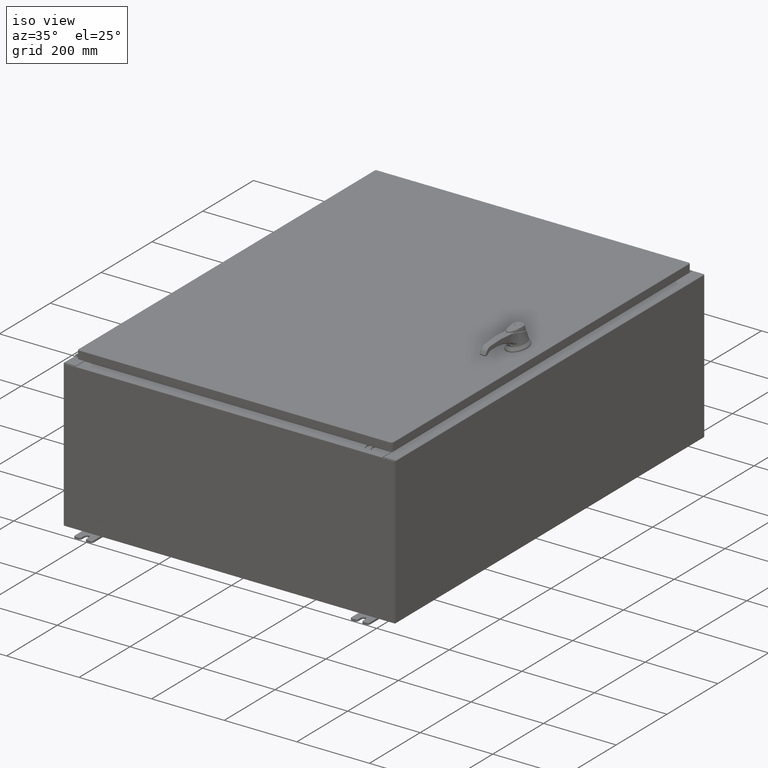
[diagram: clean part render]
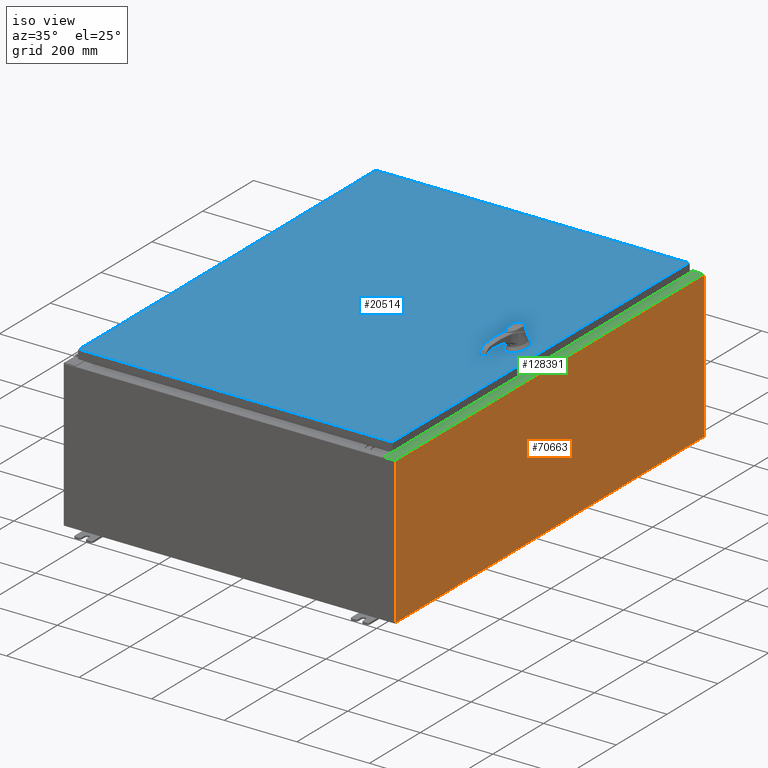
[diagram: same view with three faces highlighted in distinct colors, each labeled with its STEP entity id]
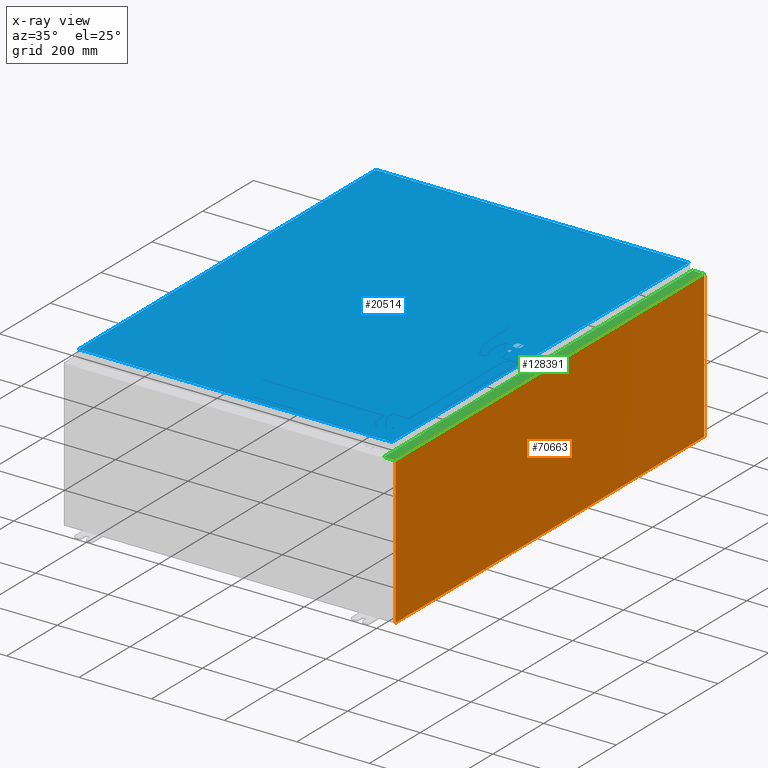
[diagram: x-ray of the same camera — body ghosted, the three highlighted faces saturated]
A machine part, iso view with three faces highlighted in distinct colors.
The next image is the same camera in x-ray (body ghosted, the three faces saturated) — at least one of them is partly hidden behind the body in this view.
Their STEP definitions:

[orange] entity #70663 — the highlighted planar face has unit normal (-1, 0, 0).
#13426 = ORIENTED_EDGE ( 'NONE', *, *, #73086, .T. ) ;
#14192 = LINE ( 'NONE', #91374, #117995 ) ;
#16916 = CARTESIAN_POINT ( 'NONE',  ( 17.99999999999999600, -23.92529999999998900, -6.201571169367080700E-014 ) ) ;
#20278 = EDGE_CURVE ( 'NONE', #101464, #87814, #14192, .T. ) ;
#28510 = CARTESIAN_POINT ( 'NONE',  ( 18.00000000000005000, -23.92529999999998900, 15.83760000000000200 ) ) ;
#37162 = EDGE_CURVE ( 'NONE', #52824, #109410, #124365, .T. ) ;
#52776 = CARTESIAN_POINT ( 'NONE',  ( 17.99999999999999600, 0.0000000000000000000, -6.201571169367080700E-014 ) ) ;
#52824 = VERTEX_POINT ( 'NONE', #87596 ) ;
#55037 = ORIENTED_EDGE ( 'NONE', *, *, #20278, .F. ) ;
#63211 = DIRECTION ( 'NONE',  ( 3.430827668758846700E-015, 0.0000000000000000000, 1.000000000000000000 ) ) ;
#65904 = VECTOR ( 'NONE', #92284, 39.37007874015748100 ) ;
#66698 = CARTESIAN_POINT ( 'NONE',  ( 17.99999999999999600, -23.92529999999998900, 0.01299999999999898300 ) ) ;
#69177 = VECTOR ( 'NONE', #102831, 39.37007874015748100 ) ;
#70663 = ADVANCED_FACE ( 'NONE', ( #86951 ), #104457, .F. ) ;
#71543 = CARTESIAN_POINT ( 'NONE',  ( 18.00000000000005000, 23.92529999999998900, 15.83760000000001400 ) ) ;
#71860 = CARTESIAN_POINT ( 'NONE',  ( 17.99999999999999600, 23.92529999999998900, -6.201571169367080700E-014 ) ) ;
#73086 = EDGE_CURVE ( 'NONE', #109410, #87814, #130807, .T. ) ;
#74635 = CARTESIAN_POINT ( 'NONE',  ( 17.99999999999999600, 23.92529999999998600, 0.01300000000000203200 ) ) ;
#75626 = VECTOR ( 'NONE', #89504, 39.37007874015748100 ) ;
#86951 = FACE_OUTER_BOUND ( 'NONE', #132539, .T. ) ;
#87596 = CARTESIAN_POINT ( 'NONE',  ( 18.00000000000005000, 23.92529999999998600, 15.83760000000001400 ) ) ;
#87814 = VERTEX_POINT ( 'NONE', #66698 ) ;
#89504 = DIRECTION ( 'NONE',  ( -3.430827668758847500E-015, 0.0000000000000000000, -1.000000000000000000 ) ) ;
#90268 = LINE ( 'NONE', #71860, #65904 ) ;
#91374 = CARTESIAN_POINT ( 'NONE',  ( 17.99999999999999600, -23.92529999999998900, 0.01299999999999984700 ) ) ;
#92284 = DIRECTION ( 'NONE',  ( 3.430827668758847500E-015, 0.0000000000000000000, 1.000000000000000000 ) ) ;
#94868 = ORIENTED_EDGE ( 'NONE', *, *, #118464, .T. ) ;
#98687 = ORIENTED_EDGE ( 'NONE', *, *, #37162, .T. ) ;
#100977 = AXIS2_PLACEMENT_3D ( 'NONE', #52776, #125319, #63211 ) ;
#101464 = VERTEX_POINT ( 'NONE', #74635 ) ;
#102831 = DIRECTION ( 'NONE',  ( -0.0000000000000000000, -1.000000000000000000, -0.0000000000000000000 ) ) ;
#104457 = PLANE ( 'NONE',  #100977 ) ;
#109410 = VERTEX_POINT ( 'NONE', #28510 ) ;
#112195 = DIRECTION ( 'NONE',  ( -1.566960444969418600E-031, -1.000000000000000000, -4.567295697298285000E-017 ) ) ;
#117995 = VECTOR ( 'NONE', #112195, 39.37007874015748100 ) ;
#118464 = EDGE_CURVE ( 'NONE', #101464, #52824, #90268, .T. ) ;
#124365 = LINE ( 'NONE', #71543, #69177 ) ;
#125319 = DIRECTION ( 'NONE',  ( -1.000000000000000000, 0.0000000000000000000, 3.430827668758846700E-015 ) ) ;
#130807 = LINE ( 'NONE', #16916, #75626 ) ;
#132539 = EDGE_LOOP ( 'NONE', ( #98687, #13426, #55037, #94868 ) ) ;

[blue] entity #20514 — the highlighted planar face has unit normal (0, 0, -1).
#185 = EDGE_LOOP ( 'NONE', ( #32692, #109024, #74725, #83992, #91332, #103546, #100990, #42180 ) ) ;
#461 = VECTOR ( 'NONE', #74531, 39.37007874015748100 ) ;
#3448 = AXIS2_PLACEMENT_3D ( 'NONE', #36882, #109441, #47304 ) ;
#3476 = DIRECTION ( 'NONE',  ( -0.0000000000000000000, 0.0000000000000000000, 1.000000000000000000 ) ) ;
#4538 = CARTESIAN_POINT ( 'NONE',  ( -16.99029999999999800, -23.00630000000000300, 1.946441695485787500E-015 ) ) ;
#5966 = CARTESIAN_POINT ( 'NONE',  ( -16.99029999999998400, 23.00630000000001000, -1.297627796990525000E-015 ) ) ;
#6621 = VECTOR ( 'NONE', #40132, 39.37007874015748100 ) ;
#7562 = LINE ( 'NONE', #4538, #59459 ) ;
#8070 = CARTESIAN_POINT ( 'NONE',  ( 16.99029999999999800, 23.00630000000001000, 1.946441695485787500E-015 ) ) ;
#9580 = CARTESIAN_POINT ( 'NONE',  ( 14.77822737075630900, 0.4029999999999252000, 0.0000000000000000000 ) ) ;
#11800 = CARTESIAN_POINT ( 'NONE',  ( 14.40649999999999800, -1.338000000000000100, 0.0000000000000000000 ) ) ;
#11897 = AXIS2_PLACEMENT_3D ( 'NONE', #101452, #39332, #111889 ) ;
#15322 = VERTEX_POINT ( 'NONE', #114502 ) ;
#20083 = EDGE_CURVE ( 'NONE', #45041, #64382, #103428, .T. ) ;
#20514 = ADVANCED_FACE ( 'NONE', ( #104977, #80642, #25463 ), #32342, .F. ) ;
#21223 = EDGE_CURVE ( 'NONE', #45819, #127299, #7562, .T. ) ;
#21680 = AXIS2_PLACEMENT_3D ( 'NONE', #22404, #94964, #32801 ) ;
#22302 = CIRCLE ( 'NONE', #30408, 0.4499999999999168000 ) ;
#22404 = CARTESIAN_POINT ( 'NONE',  ( 0.0000000000000000000, 0.0000000000000000000, 0.0000000000000000000 ) ) ;
#25169 = CARTESIAN_POINT ( 'NONE',  ( 14.37777262924369000, -0.4029999999999252000, 0.0000000000000000000 ) ) ;
#25463 = FACE_BOUND ( 'NONE', #185, .T. ) ;
#25514 = VECTOR ( 'NONE', #132279, 39.37007874015748100 ) ;
#26528 = EDGE_CURVE ( 'NONE', #103973, #96604, #28003, .T. ) ;
#28003 = LINE ( 'NONE', #84965, #461 ) ;
#28245 = VERTEX_POINT ( 'NONE', #11800 ) ;
#29455 = LINE ( 'NONE', #5966, #78142 ) ;
#30157 = LINE ( 'NONE', #62503, #109685 ) ;
#30408 = AXIS2_PLACEMENT_3D ( 'NONE', #95776, #33616, #106180 ) ;
#32342 = PLANE ( 'NONE',  #21680 ) ;
#32375 = ORIENTED_EDGE ( 'NONE', *, *, #65922, .F. ) ;
#32409 = VERTEX_POINT ( 'NONE', #90830 ) ;
#32692 = ORIENTED_EDGE ( 'NONE', *, *, #114105, .T. ) ;
#32801 = DIRECTION ( 'NONE',  ( -1.000000000000000000, 0.0000000000000000000, -0.0000000000000000000 ) ) ;
#33310 = VERTEX_POINT ( 'NONE', #90485 ) ;
#33616 = DIRECTION ( 'NONE',  ( -0.0000000000000000000, 0.0000000000000000000, 1.000000000000000000 ) ) ;
#35748 = DIRECTION ( 'NONE',  ( 1.000000000000000000, -0.0000000000000000000, -0.0000000000000000000 ) ) ;
#36882 = CARTESIAN_POINT ( 'NONE',  ( 14.57799999999999900, 0.0000000000000000000, 0.0000000000000000000 ) ) ;
#36918 = DIRECTION ( 'NONE',  ( -0.0000000000000000000, 0.0000000000000000000, 1.000000000000000000 ) ) ;
#36995 = ORIENTED_EDGE ( 'NONE', *, *, #104203, .T. ) ;
#38498 = VERTEX_POINT ( 'NONE', #122379 ) ;
#39332 = DIRECTION ( 'NONE',  ( -0.0000000000000000000, 0.0000000000000000000, 1.000000000000000000 ) ) ;
#40105 = EDGE_LOOP ( 'NONE', ( #105747, #36995, #42510, #45114 ) ) ;
#40132 = DIRECTION ( 'NONE',  ( 0.0000000000000000000, -1.000000000000000000, 0.0000000000000000000 ) ) ;
#40399 = EDGE_CURVE ( 'NONE', #107864, #54961, #132619, .T. ) ;
#41616 = AXIS2_PLACEMENT_3D ( 'NONE', #48266, #120803, #58680 ) ;
#42180 = ORIENTED_EDGE ( 'NONE', *, *, #20083, .F. ) ;
#42510 = ORIENTED_EDGE ( 'NONE', *, *, #40399, .T. ) ;
#43776 = LINE ( 'NONE', #90489, #95712 ) ;
#45041 = VERTEX_POINT ( 'NONE', #74267 ) ;
#45114 = ORIENTED_EDGE ( 'NONE', *, *, #130340, .T. ) ;
#45819 = VERTEX_POINT ( 'NONE', #63737 ) ;
#47304 = DIRECTION ( 'NONE',  ( 1.000000000000000000, 0.0000000000000000000, 0.0000000000000000000 ) ) ;
#48266 = CARTESIAN_POINT ( 'NONE',  ( 14.57799999999999900, 0.0000000000000000000, 0.0000000000000000000 ) ) ;
#48580 = EDGE_CURVE ( 'NONE', #33310, #15322, #82846, .T. ) ;
#48975 = EDGE_CURVE ( 'NONE', #28245, #38498, #60056, .T. ) ;
#49059 = EDGE_CURVE ( 'NONE', #64382, #32409, #77886, .T. ) ;
#52997 = CIRCLE ( 'NONE', #41616, 0.4499999999999168000 ) ;
#54961 = VERTEX_POINT ( 'NONE', #126437 ) ;
#58680 = DIRECTION ( 'NONE',  ( 1.000000000000000000, 0.0000000000000000000, 0.0000000000000000000 ) ) ;
#59459 = VECTOR ( 'NONE', #35748, 39.37007874015748100 ) ;
#60056 = CIRCLE ( 'NONE', #104587, 0.1715000000000011500 ) ;
#62503 = CARTESIAN_POINT ( 'NONE',  ( 14.98099999999992700, 8.175868191945441800E-014, 0.0000000000000000000 ) ) ;
#63737 = CARTESIAN_POINT ( 'NONE',  ( -16.99029999999999800, -23.00630000000000300, 1.946441695485787500E-015 ) ) ;
#63846 = AXIS2_PLACEMENT_3D ( 'NONE', #65526, #3476, #75973 ) ;
#64382 = VERTEX_POINT ( 'NONE', #9580 ) ;
#65526 = CARTESIAN_POINT ( 'NONE',  ( 14.57799999999999900, 0.0000000000000000000, 0.0000000000000000000 ) ) ;
#65922 = EDGE_CURVE ( 'NONE', #38498, #28245, #128292, .T. ) ;
#69394 = EDGE_CURVE ( 'NONE', #96604, #72893, #22302, .T. ) ;
#72404 = EDGE_LOOP ( 'NONE', ( #32375, #98151 ) ) ;
#72893 = VERTEX_POINT ( 'NONE', #118495 ) ;
#72937 = DIRECTION ( 'NONE',  ( 5.457491617345625800E-015, -1.000000000000000000, 0.0000000000000000000 ) ) ;
#74267 = CARTESIAN_POINT ( 'NONE',  ( 14.98099999999992700, 0.2002273707563075900, 0.0000000000000000000 ) ) ;
#74378 = CIRCLE ( 'NONE', #63846, 0.4499999999999168000 ) ;
#74531 = DIRECTION ( 'NONE',  ( 1.000000000000000000, 0.0000000000000000000, 0.0000000000000000000 ) ) ;
#74725 = ORIENTED_EDGE ( 'NONE', *, *, #26528, .F. ) ;
#75973 = DIRECTION ( 'NONE',  ( 1.000000000000000000, 0.0000000000000000000, 0.0000000000000000000 ) ) ;
#77886 = LINE ( 'NONE', #89984, #102197 ) ;
#78142 = VECTOR ( 'NONE', #130138, 39.37007874015748100 ) ;
#80642 = FACE_OUTER_BOUND ( 'NONE', #40105, .T. ) ;
#82846 = LINE ( 'NONE', #132653, #6621 ) ;
#83992 = ORIENTED_EDGE ( 'NONE', *, *, #93294, .F. ) ;
#84965 = CARTESIAN_POINT ( 'NONE',  ( 0.0000000000000000000, -0.4029999999999252000, 0.0000000000000000000 ) ) ;
#85877 = CARTESIAN_POINT ( 'NONE',  ( 16.99029999999999800, -23.00630000000000300, -2.048885995248197400E-016 ) ) ;
#89984 = CARTESIAN_POINT ( 'NONE',  ( 0.0000000000000000000, 0.4029999999999252000, 0.0000000000000000000 ) ) ;
#90485 = CARTESIAN_POINT ( 'NONE',  ( 14.17500000000007400, 0.2002273707563079800, 0.0000000000000000000 ) ) ;
#90489 = CARTESIAN_POINT ( 'NONE',  ( 16.99029999999999800, -23.00630000000000300, -2.048885995248197400E-016 ) ) ;
#90830 = CARTESIAN_POINT ( 'NONE',  ( 14.37777262924369000, 0.4029999999999252000, 0.0000000000000000000 ) ) ;
#91332 = ORIENTED_EDGE ( 'NONE', *, *, #48580, .F. ) ;
#93294 = EDGE_CURVE ( 'NONE', #15322, #103973, #52997, .T. ) ;
#94964 = DIRECTION ( 'NONE',  ( 0.0000000000000000000, 0.0000000000000000000, -1.000000000000000000 ) ) ;
#95712 = VECTOR ( 'NONE', #121721, 39.37007874015748100 ) ;
#95776 = CARTESIAN_POINT ( 'NONE',  ( 14.57799999999999900, 0.0000000000000000000, 0.0000000000000000000 ) ) ;
#96604 = VERTEX_POINT ( 'NONE', #97288 ) ;
#97288 = CARTESIAN_POINT ( 'NONE',  ( 14.77822737075630900, -0.4029999999999252000, 0.0000000000000000000 ) ) ;
#98151 = ORIENTED_EDGE ( 'NONE', *, *, #48975, .F. ) ;
#99043 = CARTESIAN_POINT ( 'NONE',  ( 14.57799999999999900, -1.338000000000000100, 0.0000000000000000000 ) ) ;
#100990 = ORIENTED_EDGE ( 'NONE', *, *, #49059, .F. ) ;
#101351 = CARTESIAN_POINT ( 'NONE',  ( 16.99029999999999800, 23.00630000000001000, 1.946441695485787500E-015 ) ) ;
#101452 = CARTESIAN_POINT ( 'NONE',  ( 14.57799999999999900, -1.338000000000000100, 0.0000000000000000000 ) ) ;
#102197 = VECTOR ( 'NONE', #110798, 39.37007874015748100 ) ;
#103428 = CIRCLE ( 'NONE', #3448, 0.4499999999999168000 ) ;
#103546 = ORIENTED_EDGE ( 'NONE', *, *, #133400, .F. ) ;
#103973 = VERTEX_POINT ( 'NONE', #25169 ) ;
#104203 = EDGE_CURVE ( 'NONE', #127299, #107864, #43776, .T. ) ;
#104587 = AXIS2_PLACEMENT_3D ( 'NONE', #99043, #36918, #109476 ) ;
#104977 = FACE_BOUND ( 'NONE', #72404, .T. ) ;
#105747 = ORIENTED_EDGE ( 'NONE', *, *, #21223, .T. ) ;
#106180 = DIRECTION ( 'NONE',  ( 1.000000000000000000, 0.0000000000000000000, 0.0000000000000000000 ) ) ;
#107864 = VERTEX_POINT ( 'NONE', #101351 ) ;
#109024 = ORIENTED_EDGE ( 'NONE', *, *, #69394, .F. ) ;
#109441 = DIRECTION ( 'NONE',  ( -0.0000000000000000000, 0.0000000000000000000, 1.000000000000000000 ) ) ;
#109476 = DIRECTION ( 'NONE',  ( 1.000000000000000000, 0.0000000000000000000, 0.0000000000000000000 ) ) ;
#109685 = VECTOR ( 'NONE', #72937, 39.37007874015748100 ) ;
#110798 = DIRECTION ( 'NONE',  ( -1.000000000000000000, 0.0000000000000000000, 0.0000000000000000000 ) ) ;
#111889 = DIRECTION ( 'NONE',  ( 1.000000000000000000, 0.0000000000000000000, 0.0000000000000000000 ) ) ;
#114105 = EDGE_CURVE ( 'NONE', #45041, #72893, #30157, .T. ) ;
#114502 = CARTESIAN_POINT ( 'NONE',  ( 14.17500000000007400, -0.2002273707563079800, 0.0000000000000000000 ) ) ;
#118495 = CARTESIAN_POINT ( 'NONE',  ( 14.98099999999992900, -0.2002273707563079800, 0.0000000000000000000 ) ) ;
#120803 = DIRECTION ( 'NONE',  ( -0.0000000000000000000, 0.0000000000000000000, 1.000000000000000000 ) ) ;
#121721 = DIRECTION ( 'NONE',  ( 0.0000000000000000000, 1.000000000000000000, 0.0000000000000000000 ) ) ;
#122379 = CARTESIAN_POINT ( 'NONE',  ( 14.74950000000000100, -1.338000000000000100, 0.0000000000000000000 ) ) ;
#126437 = CARTESIAN_POINT ( 'NONE',  ( -16.99029999999998400, 23.00630000000001000, -1.297627796990525000E-015 ) ) ;
#127299 = VERTEX_POINT ( 'NONE', #85877 ) ;
#128292 = CIRCLE ( 'NONE', #11897, 0.1715000000000011500 ) ;
#130138 = DIRECTION ( 'NONE',  ( 0.0000000000000000000, -1.000000000000000000, 0.0000000000000000000 ) ) ;
#130340 = EDGE_CURVE ( 'NONE', #54961, #45819, #29455, .T. ) ;
#132279 = DIRECTION ( 'NONE',  ( -1.000000000000000000, -0.0000000000000000000, -0.0000000000000000000 ) ) ;
#132619 = LINE ( 'NONE', #8070, #25514 ) ;
#132653 = CARTESIAN_POINT ( 'NONE',  ( 14.17500000000007400, 0.0000000000000000000, 0.0000000000000000000 ) ) ;
#133400 = EDGE_CURVE ( 'NONE', #32409, #33310, #74378, .T. ) ;

[green] entity #128391 — the highlighted planar face has unit normal (-0, 0, -1).
#539 = AXIS2_PLACEMENT_3D ( 'NONE', #80264, #18141, #90740 ) ;
#2121 = CARTESIAN_POINT ( 'NONE',  ( 16.75005000000005100, -22.63109999999998600, 15.92530000000000500 ) ) ;
#2444 = CARTESIAN_POINT ( 'NONE',  ( 16.71270000000005100, -22.59374999999998900, 15.92530000000000900 ) ) ;
#2486 = VECTOR ( 'NONE', #121038, 39.37007874015748100 ) ;
#2526 = VERTEX_POINT ( 'NONE', #41567 ) ;
#3644 = ORIENTED_EDGE ( 'NONE', *, *, #51392, .T. ) ;
#3708 = CARTESIAN_POINT ( 'NONE',  ( 16.75005000000005100, -22.59374999999998900, 15.92530000000000900 ) ) ;
#5333 = EDGE_CURVE ( 'NONE', #2526, #6941, #20005, .T. ) ;
#6517 = DIRECTION ( 'NONE',  ( 1.000000000000000000, 8.144358738339254500E-032, -7.132762385546384700E-015 ) ) ;
#6941 = VERTEX_POINT ( 'NONE', #122353 ) ;
#9995 = VERTEX_POINT ( 'NONE', #87378 ) ;
#11057 = CARTESIAN_POINT ( 'NONE',  ( 16.75005000000005100, 22.63109999999996800, 15.92530000000000500 ) ) ;
#13483 = LINE ( 'NONE', #68306, #92986 ) ;
#15616 = CARTESIAN_POINT ( 'NONE',  ( 17.91230000000005200, -23.92529999999998900, 15.92530000000000000 ) ) ;
#16174 = ORIENTED_EDGE ( 'NONE', *, *, #5333, .T. ) ;
#17116 = VERTEX_POINT ( 'NONE', #79234 ) ;
#18141 = DIRECTION ( 'NONE',  ( 7.132762385546384700E-015, 0.0000000000000000000, 1.000000000000000000 ) ) ;
#20005 = LINE ( 'NONE', #46866, #127055 ) ;
#20774 = CARTESIAN_POINT ( 'NONE',  ( 1.138521944745543500E-013, 0.0000000000000000000, 15.92530000000012600 ) ) ;
#24411 = VERTEX_POINT ( 'NONE', #133139 ) ;
#25987 = DIRECTION ( 'NONE',  ( 7.132762385546384700E-015, 0.0000000000000000000, 1.000000000000000000 ) ) ;
#28659 = ORIENTED_EDGE ( 'NONE', *, *, #101183, .F. ) ;
#28716 = EDGE_CURVE ( 'NONE', #17116, #9995, #133855, .T. ) ;
#29514 = VERTEX_POINT ( 'NONE', #80054 ) ;
#31164 = DIRECTION ( 'NONE',  ( -1.000000000000000000, 0.0000000000000000000, 7.132762385546384700E-015 ) ) ;
#35944 = EDGE_CURVE ( 'NONE', #49606, #133985, #53205, .T. ) ;
#36475 = DIRECTION ( 'NONE',  ( -0.0000000000000000000, -1.000000000000000000, -0.0000000000000000000 ) ) ;
#36842 = VECTOR ( 'NONE', #132396, 39.37007874015748100 ) ;
#40144 = CIRCLE ( 'NONE', #539, 0.01867499999999949400 ) ;
#41567 = CARTESIAN_POINT ( 'NONE',  ( 16.69970000000005000, -23.92529999999998900, 15.92530000000000500 ) ) ;
#41595 = ORIENTED_EDGE ( 'NONE', *, *, #50525, .T. ) ;
#41790 = VECTOR ( 'NONE', #36475, 39.37007874015748100 ) ;
#42439 = VECTOR ( 'NONE', #85361, 39.37007874015748100 ) ;
#46866 = CARTESIAN_POINT ( 'NONE',  ( 1.138521944745543500E-013, -23.92529999999998900, 15.92530000000012600 ) ) ;
#49606 = VERTEX_POINT ( 'NONE', #72054 ) ;
#50525 = EDGE_CURVE ( 'NONE', #90506, #58800, #107479, .T. ) ;
#51392 = EDGE_CURVE ( 'NONE', #29514, #2526, #79757, .T. ) ;
#51753 = CARTESIAN_POINT ( 'NONE',  ( 1.138521944745543500E-013, 23.92529999999998600, 15.92530000000012600 ) ) ;
#52598 = EDGE_CURVE ( 'NONE', #9995, #24411, #69989, .T. ) ;
#52609 = ORIENTED_EDGE ( 'NONE', *, *, #134459, .F. ) ;
#53205 = CIRCLE ( 'NONE', #117386, 0.01867499999999949400 ) ;
#58800 = VERTEX_POINT ( 'NONE', #64400 ) ;
#59811 = EDGE_CURVE ( 'NONE', #133985, #87379, #72119, .T. ) ;
#59862 = CARTESIAN_POINT ( 'NONE',  ( 16.69970000000005000, 5.279815919650416800E-030, 15.92530000000000500 ) ) ;
#61573 = PLANE ( 'NONE',  #90520 ) ;
#62164 = DIRECTION ( 'NONE',  ( -1.000000000000000000, 4.379057701015053300E-047, 7.132762385546384700E-015 ) ) ;
#64400 = CARTESIAN_POINT ( 'NONE',  ( 16.69970000000005000, 23.92529999999998200, 15.92530000000000500 ) ) ;
#65563 = EDGE_LOOP ( 'NONE', ( #28659, #3644, #16174, #134471, #41595, #97898, #122261, #107248, #97254, #73752, #123806, #52609 ) ) ;
#68306 = CARTESIAN_POINT ( 'NONE',  ( 16.69970000000005000, -22.63109999999998600, 15.92530000000000500 ) ) ;
#68840 = VECTOR ( 'NONE', #96283, 39.37007874015748100 ) ;
#69989 = LINE ( 'NONE', #2444, #42439 ) ;
#72054 = CARTESIAN_POINT ( 'NONE',  ( 16.75005000000005100, 22.59374999999997200, 15.92530000000000500 ) ) ;
#72119 = LINE ( 'NONE', #74977, #68840 ) ;
#72122 = LINE ( 'NONE', #121748, #99702 ) ;
#73752 = ORIENTED_EDGE ( 'NONE', *, *, #52598, .F. ) ;
#74609 = EDGE_CURVE ( 'NONE', #24411, #49606, #72122, .T. ) ;
#74977 = CARTESIAN_POINT ( 'NONE',  ( 16.75005000000005100, 22.63109999999996800, 15.92530000000000900 ) ) ;
#78748 = DIRECTION ( 'NONE',  ( 1.000000000000000000, 0.0000000000000000000, 4.340572780400098900E-014 ) ) ;
#79234 = CARTESIAN_POINT ( 'NONE',  ( 16.75005000000005100, -22.59374999999998900, 15.92530000000000500 ) ) ;
#79757 = LINE ( 'NONE', #118146, #97586 ) ;
#80054 = CARTESIAN_POINT ( 'NONE',  ( 16.69970000000005000, -22.63109999999998600, 15.92530000000000500 ) ) ;
#80264 = CARTESIAN_POINT ( 'NONE',  ( 16.75005000000005100, -22.61242499999998800, 15.92530000000000900 ) ) ;
#80483 = DIRECTION ( 'NONE',  ( 1.000000000000000000, 0.0000000000000000000, 0.0000000000000000000 ) ) ;
#82693 = CARTESIAN_POINT ( 'NONE',  ( 17.91230000000005200, 23.92529999999998600, 15.92530000000000000 ) ) ;
#85361 = DIRECTION ( 'NONE',  ( -0.0000000000000000000, 1.000000000000000000, -0.0000000000000000000 ) ) ;
#87378 = CARTESIAN_POINT ( 'NONE',  ( 16.71270000000005100, -22.59374999999998900, 15.92530000000000900 ) ) ;
#87379 = VERTEX_POINT ( 'NONE', #123019 ) ;
#88140 = CARTESIAN_POINT ( 'NONE',  ( 16.75005000000005100, 22.61242499999997000, 15.92530000000000900 ) ) ;
#90506 = VERTEX_POINT ( 'NONE', #82693 ) ;
#90520 = AXIS2_PLACEMENT_3D ( 'NONE', #20774, #93330, #31164 ) ;
#90740 = DIRECTION ( 'NONE',  ( 1.000000000000000000, 0.0000000000000000000, 0.0000000000000000000 ) ) ;
#92986 = VECTOR ( 'NONE', #78748, 39.37007874015748100 ) ;
#93330 = DIRECTION ( 'NONE',  ( -7.132762385546384700E-015, 0.0000000000000000000, -1.000000000000000000 ) ) ;
#95260 = EDGE_CURVE ( 'NONE', #90506, #6941, #96958, .T. ) ;
#95736 = EDGE_CURVE ( 'NONE', #58800, #87379, #119592, .T. ) ;
#96283 = DIRECTION ( 'NONE',  ( -1.000000000000000000, 0.0000000000000000000, -4.340572780400098900E-014 ) ) ;
#96958 = LINE ( 'NONE', #15616, #41790 ) ;
#97254 = ORIENTED_EDGE ( 'NONE', *, *, #74609, .F. ) ;
#97309 = DIRECTION ( 'NONE',  ( 3.161623214578966600E-031, -1.000000000000000000, -2.255110714221909800E-045 ) ) ;
#97586 = VECTOR ( 'NONE', #97309, 39.37007874015748100 ) ;
#97898 = ORIENTED_EDGE ( 'NONE', *, *, #95736, .T. ) ;
#98564 = DIRECTION ( 'NONE',  ( 1.000000000000000000, 0.0000000000000000000, 0.0000000000000000000 ) ) ;
#99702 = VECTOR ( 'NONE', #80483, 39.37007874015748100 ) ;
#101183 = EDGE_CURVE ( 'NONE', #29514, #133328, #13483, .T. ) ;
#107248 = ORIENTED_EDGE ( 'NONE', *, *, #35944, .F. ) ;
#107479 = LINE ( 'NONE', #51753, #131790 ) ;
#117386 = AXIS2_PLACEMENT_3D ( 'NONE', #88140, #25987, #98564 ) ;
#118146 = CARTESIAN_POINT ( 'NONE',  ( 16.69970000000005000, 5.279815919650416800E-030, 15.92530000000000500 ) ) ;
#119592 = LINE ( 'NONE', #59862, #36842 ) ;
#121038 = DIRECTION ( 'NONE',  ( -1.000000000000000000, 0.0000000000000000000, 0.0000000000000000000 ) ) ;
#121748 = CARTESIAN_POINT ( 'NONE',  ( 16.71270000000005100, 22.59374999999997200, 15.92530000000000900 ) ) ;
#122261 = ORIENTED_EDGE ( 'NONE', *, *, #59811, .F. ) ;
#122353 = CARTESIAN_POINT ( 'NONE',  ( 17.91230000000005200, -23.92529999999998900, 15.92530000000000000 ) ) ;
#123019 = CARTESIAN_POINT ( 'NONE',  ( 16.69970000000005000, 22.63109999999996800, 15.92530000000000500 ) ) ;
#123806 = ORIENTED_EDGE ( 'NONE', *, *, #28716, .F. ) ;
#125480 = FACE_OUTER_BOUND ( 'NONE', #65563, .T. ) ;
#127055 = VECTOR ( 'NONE', #6517, 39.37007874015748100 ) ;
#128391 = ADVANCED_FACE ( 'NONE', ( #125480 ), #61573, .F. ) ;
#131790 = VECTOR ( 'NONE', #62164, 39.37007874015748100 ) ;
#132396 = DIRECTION ( 'NONE',  ( 3.161623214578966600E-031, -1.000000000000000000, -2.255110714221909800E-045 ) ) ;
#133139 = CARTESIAN_POINT ( 'NONE',  ( 16.71270000000005100, 22.59374999999997200, 15.92530000000000900 ) ) ;
#133328 = VERTEX_POINT ( 'NONE', #2121 ) ;
#133855 = LINE ( 'NONE', #3708, #2486 ) ;
#133985 = VERTEX_POINT ( 'NONE', #11057 ) ;
#134459 = EDGE_CURVE ( 'NONE', #133328, #17116, #40144, .T. ) ;
#134471 = ORIENTED_EDGE ( 'NONE', *, *, #95260, .F. ) ;